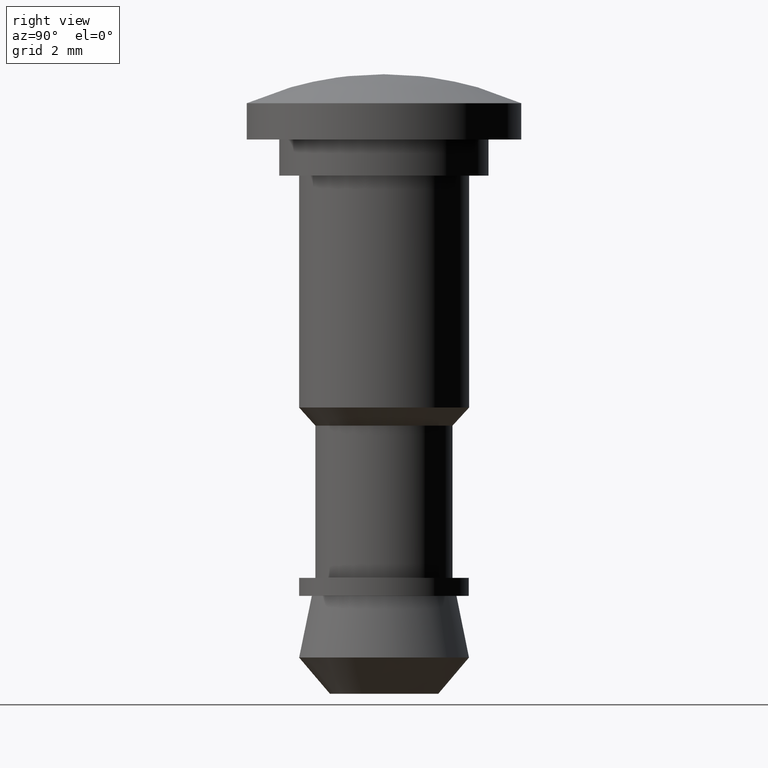
[diagram: clean part render]
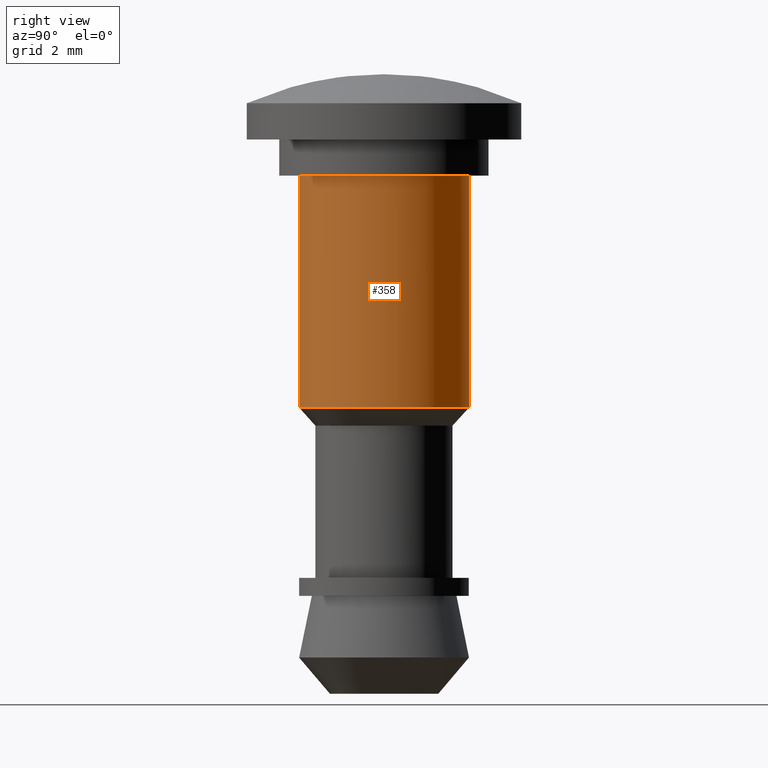
[diagram: same view with one face highlighted and labeled with its STEP entity id]
A machine part, right view. The second image highlights one B-rep face of the part: STEP entity #358.
In plain terms, the highlighted face is a freeform B-spline surface patch.
Its self-contained STEP definition (entity closure, byte-faithful):
#230=CARTESIAN_POINT('',(-0.143464067906914,2.345616776291387,0.160000000000003));
#231=CARTESIAN_POINT('',(2.202152708384472,2.489080844198301,0.160000000000003));
#232=CARTESIAN_POINT('',(2.345616776291387,0.143464067906914,0.160000000000003));
#233=CARTESIAN_POINT('',(2.489080844198301,-2.202152708384472,0.160000000000003));
#234=CARTESIAN_POINT('',(0.143464067906914,-2.345616776291387,0.160000000000003));
#235=CARTESIAN_POINT('',(-0.143464067906914,2.345616776291387,-6.564000000000114));
#236=CARTESIAN_POINT('',(2.202152708384472,2.489080844198301,-6.564000000000114));
#237=CARTESIAN_POINT('',(2.345616776291387,0.143464067906914,-6.564000000000114));
#238=CARTESIAN_POINT('',(2.489080844198301,-2.202152708384472,-6.564000000000114));
#239=CARTESIAN_POINT('',(0.143464067906914,-2.345616776291387,-6.564000000000114));
#247=(BOUNDED_SURFACE()B_SPLINE_SURFACE(2,1,((#230,#235),(#231,#236),(#232,#237),(#233,#238),(#234,#239)),.UNSPECIFIED.,.F.,.F.,.U.)B_SPLINE_SURFACE_WITH_KNOTS((3,2,3),(2,2),(0.0,3.893607486307092,7.787214972614184),(0.0,6.724000000000117),.UNSPECIFIED.)GEOMETRIC_REPRESENTATION_ITEM()RATIONAL_B_SPLINE_SURFACE(((1.0,1.0),(0.707106781186548,0.707106781186548),(1.0,1.0),(0.707106781186548,0.707106781186548),(1.0,1.0)))REPRESENTATION_ITEM('')SURFACE());
#248=CARTESIAN_POINT('',(-0.143464067918807,2.345616776290660,-6.400000000000111));
#249=VERTEX_POINT('',#248);
#250=CARTESIAN_POINT('',(1.981144114827373,1.263949364605564,-6.399999999999643));
#251=VERTEX_POINT('',#250);
#252=CARTESIAN_POINT('',(-0.143464067918807,2.345616776290660,-6.400000000000111));
#253=CARTESIAN_POINT('',(-0.071798993763611,2.350000000000000,-6.400000000000111));
#254=CARTESIAN_POINT('',(0.0,2.350000000000000,-6.400000000000111));
#255=CARTESIAN_POINT('',(1.288255091624139,2.350000000000000,-6.400000000000111));
#256=CARTESIAN_POINT('',(1.981144114827373,1.263949364605564,-6.399999999999644));
#264=(BOUNDED_CURVE()B_SPLINE_CURVE(2,(#252,#253,#254,#255,#256),.UNSPECIFIED.,.F.,.U.)B_SPLINE_CURVE_WITH_KNOTS((3,2,3),(0.239332962240218,0.250000000000000,0.407950112626527),.UNSPECIFIED.)CURVE()GEOMETRIC_REPRESENTATION_ITEM()RATIONAL_B_SPLINE_CURVE((0.976072041669452,0.987502787901332,1.0,0.814949932403476,0.863729296954292))REPRESENTATION_ITEM(''));
#265=EDGE_CURVE('',#249,#251,#264,.T.);
#266=ORIENTED_EDGE('',*,*,#265,.F.);
#267=CARTESIAN_POINT('',(-0.143464067918807,2.345616776290660,2.220446E-016));
#268=VERTEX_POINT('',#267);
#269=CARTESIAN_POINT('',(-0.143464067918807,2.345616776290660,2.220446E-016));
#270=CARTESIAN_POINT('',(-0.143464067918807,2.345616776290660,-6.400000000000111));
#271=QUASI_UNIFORM_CURVE('',1,(#269,#270),.UNSPECIFIED.,.F.,.U.);
#272=EDGE_CURVE('',#268,#249,#271,.T.);
#273=ORIENTED_EDGE('',*,*,#272,.F.);
#274=CARTESIAN_POINT('',(2.350000000000000,0.0,0.0));
#275=VERTEX_POINT('',#274);
#276=CARTESIAN_POINT('',(-0.143464067918807,2.345616776290660,2.220446E-016));
#277=CARTESIAN_POINT('',(-0.071798993763610,2.350000000000000,0.0));
#278=CARTESIAN_POINT('',(0.0,2.350000000000000,0.0));
#279=CARTESIAN_POINT('',(2.350000000000001,2.350000000000001,0.0));
#280=CARTESIAN_POINT('',(2.350000000000000,0.0,0.0));
#288=(BOUNDED_CURVE()B_SPLINE_CURVE(2,(#276,#277,#278,#279,#280),.UNSPECIFIED.,.F.,.U.)B_SPLINE_CURVE_WITH_KNOTS((3,2,3),(0.239332962240219,0.250000000000000,0.500000000000000),.UNSPECIFIED.)CURVE()GEOMETRIC_REPRESENTATION_ITEM()RATIONAL_B_SPLINE_CURVE((0.976072041669452,0.987502787901332,1.0,0.707106781186547,1.0))REPRESENTATION_ITEM(''));
#289=EDGE_CURVE('',#268,#275,#288,.T.);
#290=ORIENTED_EDGE('',*,*,#289,.T.);
#291=CARTESIAN_POINT('',(0.143464067918807,-2.345616776290660,2.220446E-016));
#292=VERTEX_POINT('',#291);
#293=CARTESIAN_POINT('',(2.350000000000000,0.0,0.0));
#294=CARTESIAN_POINT('',(2.350000000000000,-2.210659257205910,0.0));
#295=CARTESIAN_POINT('',(0.143464067918807,-2.345616776290660,2.220446E-016));
#303=(BOUNDED_CURVE()B_SPLINE_CURVE(2,(#293,#294,#295),.UNSPECIFIED.,.F.,.U.)B_SPLINE_CURVE_WITH_KNOTS((3,3),(0.500000000000000,0.739332962240217),.UNSPECIFIED.)CURVE()GEOMETRIC_REPRESENTATION_ITEM()RATIONAL_B_SPLINE_CURVE((1.0,0.719603993285217,0.976072041669449))REPRESENTATION_ITEM(''));
#304=EDGE_CURVE('',#275,#292,#303,.T.);
#305=ORIENTED_EDGE('',*,*,#304,.T.);
#306=CARTESIAN_POINT('',(0.143463873339650,-2.345616788191615,-6.400000000000112));
#307=VERTEX_POINT('',#306);
#308=CARTESIAN_POINT('',(0.143464067918807,-2.345616776290660,2.220446E-016));
#309=CARTESIAN_POINT('',(0.143463873339650,-2.345616788191615,-6.400000000000112));
#310=QUASI_UNIFORM_CURVE('',1,(#308,#309),.UNSPECIFIED.,.F.,.U.);
#311=EDGE_CURVE('',#292,#307,#310,.T.);
#312=ORIENTED_EDGE('',*,*,#311,.T.);
#313=CARTESIAN_POINT('',(0.184378874975639,-2.342755734273563,-6.399999999997990));
#314=VERTEX_POINT('',#313);
#315=CARTESIAN_POINT('',(0.184378874975639,-2.342755734273564,-6.399999999997990));
#316=CARTESIAN_POINT('',(0.163933761071728,-2.344364799632380,-6.400000000000110));
#317=CARTESIAN_POINT('',(0.143463873339650,-2.345616788191615,-6.400000000000113));
#325=(BOUNDED_CURVE()B_SPLINE_CURVE(2,(#315,#316,#317),.UNSPECIFIED.,.F.,.U.)B_SPLINE_CURVE_WITH_KNOTS((3,3),(0.736331300630564,0.739332990867239),.UNSPECIFIED.)CURVE()GEOMETRIC_REPRESENTATION_ITEM()RATIONAL_B_SPLINE_CURVE((0.969723356167218,0.972855505432367,0.976072103022613))REPRESENTATION_ITEM(''));
#326=EDGE_CURVE('',#314,#307,#325,.T.);
#327=ORIENTED_EDGE('',*,*,#326,.F.);
#328=CARTESIAN_POINT('',(2.350000000000000,0.0,-6.400000000000111));
#329=VERTEX_POINT('',#328);
#330=CARTESIAN_POINT('',(2.350000000000000,0.0,-6.400000000000111));
#331=CARTESIAN_POINT('',(2.350000000000000,-2.172317655368778,-6.400000000000111));
#332=CARTESIAN_POINT('',(0.184378874975639,-2.342755734273564,-6.399999999997990));
#340=(BOUNDED_CURVE()B_SPLINE_CURVE(2,(#330,#331,#332),.UNSPECIFIED.,.F.,.U.)B_SPLINE_CURVE_WITH_KNOTS((3,3),(0.500000000000000,0.736331300630563),.UNSPECIFIED.)CURVE()GEOMETRIC_REPRESENTATION_ITEM()RATIONAL_B_SPLINE_CURVE((1.0,0.723120658607778,0.969723356167217))REPRESENTATION_ITEM(''));
#341=EDGE_CURVE('',#329,#314,#340,.T.);
#342=ORIENTED_EDGE('',*,*,#341,.F.);
#343=CARTESIAN_POINT('',(1.981144114827373,1.263949364605564,-6.399999999999643));
#344=CARTESIAN_POINT('',(2.350000000000001,0.685795930149978,-6.400000000000110));
#345=CARTESIAN_POINT('',(2.350000000000000,0.0,-6.400000000000111));
#353=(BOUNDED_CURVE()B_SPLINE_CURVE(2,(#343,#344,#345),.UNSPECIFIED.,.F.,.U.)B_SPLINE_CURVE_WITH_KNOTS((3,3),(0.407950112626527,0.500000000000000),.UNSPECIFIED.)CURVE()GEOMETRIC_REPRESENTATION_ITEM()RATIONAL_B_SPLINE_CURVE((0.863729296954292,0.892156848783071,1.0))REPRESENTATION_ITEM(''));
#354=EDGE_CURVE('',#251,#329,#353,.T.);
#355=ORIENTED_EDGE('',*,*,#354,.F.);
#356=EDGE_LOOP('',(#266,#273,#290,#305,#312,#327,#342,#355));
#357=FACE_OUTER_BOUND('',#356,.T.);
#358=ADVANCED_FACE('',(#357),#247,.T.);